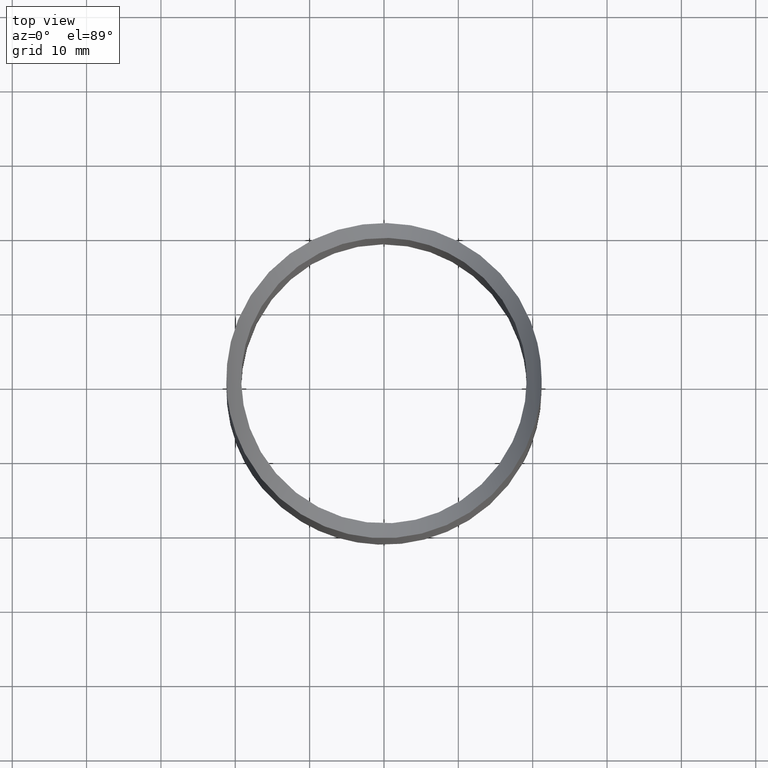
[diagram: clean part render]
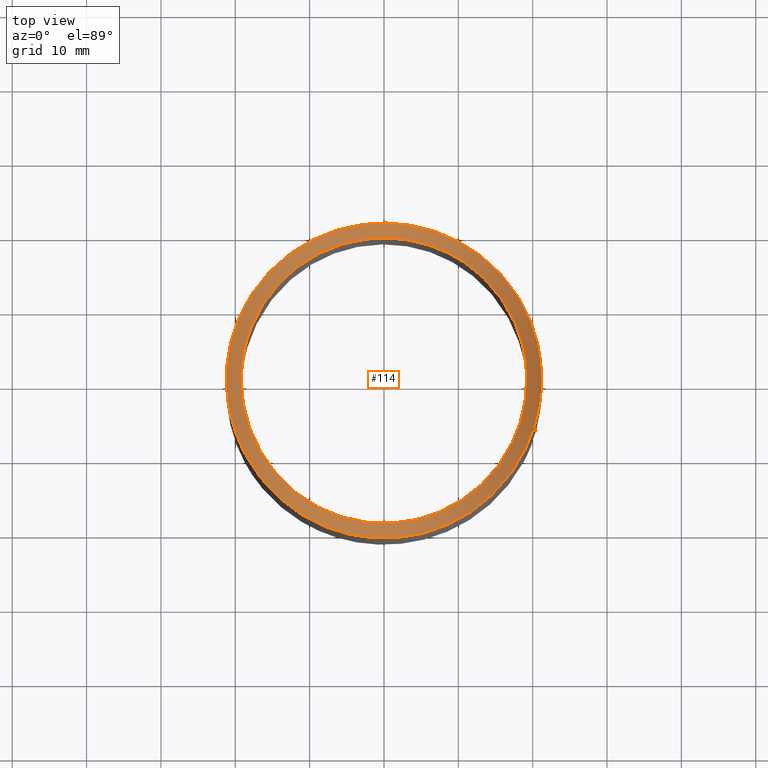
[diagram: same view with one face highlighted and labeled with its STEP entity id]
A machine part, top view. The second image highlights one B-rep face of the part: STEP entity #114.
In plain terms, the highlighted cylindrical surface (partial cylindrical patch) has radius 24.15 mm, axis along (-0, 1, -0).
Its self-contained STEP definition (entity closure, byte-faithful):
#34 = FACE_OUTER_BOUND ( 'NONE', #9448, .T. ) ;
#66 = CARTESIAN_POINT ( 'NONE',  ( -19.94419146322031366, 7.219722584351021766, 34.05163442060293022 ) ) ;
#114 = ADVANCED_FACE ( 'NONE', ( #11532, #34 ), #7959, .F. ) ;
#154 = CARTESIAN_POINT ( 'NONE',  ( -20.62931908667948733, -4.937671174590838596, 35.11586201277336272 ) ) ;
#203 = CARTESIAN_POINT ( 'NONE',  ( -10.00391576498439150, -18.69453692488314545, 25.69179903627292560 ) ) ;
#246 = CARTESIAN_POINT ( 'NONE',  ( -16.19715647493500654, -13.69350632152724323, 29.75343096745083216 ) ) ;
#296 = CARTESIAN_POINT ( 'NONE',  ( 0.5992993401474236981, -21.20478202979933968, 23.52080213603889192 ) ) ;
#366 = CARTESIAN_POINT ( 'NONE',  ( 18.65490721349695491, -4.553721170974482035, 32.33769436334911518 ) ) ;
#390 = CARTESIAN_POINT ( 'NONE',  ( 14.26758304632108576, -15.73462341832112799, 28.15500989669029863 ) ) ;
#499 = CARTESIAN_POINT ( 'NONE',  ( 12.84787325281731007, -14.28080746366602760, 27.21901617949156815 ) ) ;
#549 = CARTESIAN_POINT ( 'NONE',  ( 16.27824432263802734, -10.19867580380511107, 29.83022275899706699 ) ) ;
#597 = CARTESIAN_POINT ( 'NONE',  ( 1.363781126241001118, -19.16317454119205976, 23.55430538705656573 ) ) ;
#638 = CARTESIAN_POINT ( 'NONE',  ( -3.255958080950192457, -18.92481743305896558, 23.74321653817355937 ) ) ;
#685 = CARTESIAN_POINT ( 'NONE',  ( 5.189299040029762722, 18.53272038759255835, 24.05261592422202099 ) ) ;
#734 = CARTESIAN_POINT ( 'NONE',  ( 8.756019969652241386, 17.09866197453808923, 25.16040561859561109 ) ) ;
#778 = CARTESIAN_POINT ( 'NONE',  ( 17.90542043135987527, 6.957763823597780117, 31.46568052536743210 ) ) ;
#809 = CARTESIAN_POINT ( 'NONE',  ( 21.19999999999999929, 0.7607316018210191766, 36.10856148159687251 ) ) ;
#818 = CARTESIAN_POINT ( 'NONE',  ( 11.87555162268128228, 15.09910562634390452, 26.63957769094678341 ) ) ;
#856 = CARTESIAN_POINT ( 'NONE',  ( 16.16775112329284880, 13.77464031684857204, 29.69759144699613884 ) ) ;
#866 = CARTESIAN_POINT ( 'NONE',  ( 19.20000000000000639, 0.6733561967134887860, 33.02636525132805190 ) ) ;
#900 = CARTESIAN_POINT ( 'NONE',  ( 18.35738798289526841, 10.62389000726081534, 31.97583591808911407 ) ) ;
#936 = DIRECTION ( 'NONE',  ( -0.000000000000000000, 1.000000000000000000, -0.000000000000000000 ) ) ;
#946 = CARTESIAN_POINT ( 'NONE',  ( 3.828703173773335244, 20.86444194102675098, 23.81915204452525003 ) ) ;
#1001 = CARTESIAN_POINT ( 'NONE',  ( 0.8570938160425978225, 21.19576360719492669, 23.52871889231639813 ) ) ;
#1092 = CARTESIAN_POINT ( 'NONE',  ( -20.36288625874305680, 5.937005181913807661, 34.68578424057155729 ) ) ;
#1189 = CARTESIAN_POINT ( 'NONE',  ( -21.17139254519067393, -1.327900722634554942, 36.05532838118423911 ) ) ;
#1236 = CARTESIAN_POINT ( 'NONE',  ( -20.45541735194242960, -5.611173856344445987, 34.83223599468176701 ) ) ;
#1284 = CARTESIAN_POINT ( 'NONE',  ( -14.40607568455914844, -15.60842448588201137, 28.25692576045749504 ) ) ;
#1334 = CARTESIAN_POINT ( 'NONE',  ( 5.052017920772571280, -20.60256207620233226, 24.04784085383190373 ) ) ;
#1424 = CARTESIAN_POINT ( 'NONE',  ( 20.39193468106632068, -5.807951388633579626, 34.73588361584385353 ) ) ;
#1473 = CARTESIAN_POINT ( 'NONE',  ( 9.776366241319037087, -18.82411369512748323, 25.58208157620547141 ) ) ;
#1546 = CARTESIAN_POINT ( 'NONE',  ( -16.57788926204874258, -9.704533056861709639, 30.10916673208805605 ) ) ;
#1594 = CARTESIAN_POINT ( 'NONE',  ( -18.15465230008538455, 6.368417433403505079, 31.73365288073044965 ) ) ;
#1616 = CARTESIAN_POINT ( 'NONE',  ( 21.19999999999999218, -4.607859233063393845E-16, 36.10856148159686541 ) ) ;
#1642 = CARTESIAN_POINT ( 'NONE',  ( -10.37863266359358327, -16.16477823992030594, 25.86154633321826068 ) ) ;
#1691 = CARTESIAN_POINT ( 'NONE',  ( -19.15521536426648908, -1.352689336175174173, 32.96782226099617930 ) ) ;
#1743 = CARTESIAN_POINT ( 'NONE',  ( -8.760153950930892108, -17.09650181637034194, 25.16204350349035224 ) ) ;
#1784 = CARTESIAN_POINT ( 'NONE',  ( -8.870002749926458208, 17.07581724350661645, 25.17924112084229904 ) ) ;
#1824 = CARTESIAN_POINT ( 'NONE',  ( 18.12073782222541851, 6.377740150159297627, 31.70797652130449862 ) ) ;
#1862 = CARTESIAN_POINT ( 'NONE',  ( -0.3881891571719875977, 19.19894101236592121, 23.52584192676885166 ) ) ;
#1943 = CARTESIAN_POINT ( 'NONE',  ( -13.19870381461336883, 16.60337798851294266, 27.44154372066829595 ) ) ;
#1987 = CARTESIAN_POINT ( 'NONE',  ( 12.79854085659568064, 16.91417942586904033, 27.18536005029367431 ) ) ;
#2030 = CARTESIAN_POINT ( 'NONE',  ( -3.977638343958842526, 20.82676644983991565, 23.85199950302858340 ) ) ;
#2081 = CARTESIAN_POINT ( 'NONE',  ( -14.68694656133646426, 15.30210980942055343, 28.49542990981161239 ) ) ;
#2177 = CARTESIAN_POINT ( 'NONE',  ( -21.19613358253338475, 0.5540781783344892464, 36.10147572910654645 ) ) ;
#2204 = DIRECTION ( 'NONE',  ( 0.000000000000000000, 0.000000000000000000, 1.000000000000000000 ) ) ;
#2313 = CARTESIAN_POINT ( 'NONE',  ( -20.05044987211627117, -6.920175649073054380, 34.20874045013990639 ) ) ;
#2360 = CARTESIAN_POINT ( 'NONE',  ( -0.8999169650053071567, -21.19415226156729659, 23.53013339016800742 ) ) ;
#2368 = VERTEX_POINT ( 'NONE', #4819 ) ;
#2459 = CARTESIAN_POINT ( 'NONE',  ( 5.762301184145837141, -20.41495202547942256, 24.21140025201506774 ) ) ;
#2525 = CARTESIAN_POINT ( 'NONE',  ( 18.12302669211720740, -6.370881589193591488, 31.71060711726216752 ) ) ;
#2614 = CARTESIAN_POINT ( 'NONE',  ( -18.49362913039032463, -5.198163359133895156, 32.14139585758521633 ) ) ;
#2668 = CARTESIAN_POINT ( 'NONE',  ( -17.16841745299954169, 8.616805603504120725, 30.68590196336463904 ) ) ;
#2716 = CARTESIAN_POINT ( 'NONE',  ( -18.11397489362586910, -6.396806568418024419, 31.70029844977505107 ) ) ;
#2768 = CARTESIAN_POINT ( 'NONE',  ( -19.16624718914797398, 1.314398449266445779, 32.98181745028027478 ) ) ;
#2812 = CARTESIAN_POINT ( 'NONE',  ( 7.090031377504283583, -17.85434781506717883, 24.58098190192093213 ) ) ;
#2901 = CARTESIAN_POINT ( 'NONE',  ( -1.720803456266110976, 19.12565675985445424, 23.58407282594136944 ) ) ;
#2921 = CARTESIAN_POINT ( 'NONE',  ( -6.617685140892510666E-15, -21.19999999999999929, 47.67499999999999716 ) ) ;
#2939 = CARTESIAN_POINT ( 'NONE',  ( 18.49976728379239788, 5.176419524179714848, 32.14871298614610851 ) ) ;
#2974 = CARTESIAN_POINT ( 'NONE',  ( 10.37756682919519768, 16.16549921756677222, 25.86101600772280662 ) ) ;
#3008 = CARTESIAN_POINT ( 'NONE',  ( 16.96650338785486056, 12.77562585898296632, 30.45766644754966279 ) ) ;
#3051 = CARTESIAN_POINT ( 'NONE',  ( 5.989666282539716669, 20.38969150912193129, 24.23362212893257350 ) ) ;
#3097 = CARTESIAN_POINT ( 'NONE',  ( -5.059804035448618009, 20.60052458868202407, 24.04961701857542522 ) ) ;
#3147 = CARTESIAN_POINT ( 'NONE',  ( -1.379351382647282076, 21.16843550293391729, 23.55273133158973309 ) ) ;
#3248 = CARTESIAN_POINT ( 'NONE',  ( -20.90685473131000549, -3.532539769826033460, 35.58623692906678571 ) ) ;
#3299 = CARTESIAN_POINT ( 'NONE',  ( -18.30954737960178136, 10.76482312935650754, 31.89212507464895552 ) ) ;
#3344 = CARTESIAN_POINT ( 'NONE',  ( -18.92877723315591965, 9.635848647165394354, 32.65189449167129965 ) ) ;
#3434 = CARTESIAN_POINT ( 'NONE',  ( 16.88200995086582523, -12.83973443144087234, 30.39691521375912231 ) ) ;
#3577 = CARTESIAN_POINT ( 'NONE',  ( -6.057539750127693523, -20.37040628734392200, 24.25041600823640664 ) ) ;
#3627 = CARTESIAN_POINT ( 'NONE',  ( 16.06516379777915304, -13.84816061437716961, 29.63490615289967778 ) ) ;
#3691 = CARTESIAN_POINT ( 'NONE',  ( -18.92239781040531454, 3.269621082421543257, 32.66926862029863088 ) ) ;
#3741 = CARTESIAN_POINT ( 'NONE',  ( -16.59363267783394491, 9.677564321778540091, 30.12406371466215660 ) ) ;
#3758 = CARTESIAN_POINT ( 'NONE',  ( 20.65678568497506973, -4.781809977681571233, 35.16336350674345823 ) ) ;
#3783 = CARTESIAN_POINT ( 'NONE',  ( -18.92355857670020924, -3.310002899722413350, 32.66946757091844233 ) ) ;
#3832 = CARTESIAN_POINT ( 'NONE',  ( -6.428818667088295413, -18.13677263030219322, 24.36361817969178034 ) ) ;
#3880 = CARTESIAN_POINT ( 'NONE',  ( -5.199718337577956540, -18.52959265748502915, 24.05507122663374631 ) ) ;
#3926 = CARTESIAN_POINT ( 'NONE',  ( 1.267964607989642944, 19.16952229803325380, 23.54925750774568627 ) ) ;
#3967 = CARTESIAN_POINT ( 'NONE',  ( -4.651210577919488109, 18.63960173529629216, 23.96824617549106051 ) ) ;
#4011 = CARTESIAN_POINT ( 'NONE',  ( -5.279293763810099627, 18.47129433215803118, 24.10052795191651853 ) ) ;
#4097 = CARTESIAN_POINT ( 'NONE',  ( -14.20856944367890051, 15.74784103867826701, 28.13746971191927670 ) ) ;
#4148 = CARTESIAN_POINT ( 'NONE',  ( -2.501427200603757228, 21.05526489811397184, 23.65196207914110005 ) ) ;
#4220 = EDGE_CURVE ( 'NONE', #2368, #2368, #8311, .T. ) ;
#4246 = CARTESIAN_POINT ( 'NONE',  ( -16.86133393032116956, 12.91574079727568325, 30.35350802484506971 ) ) ;
#4390 = CARTESIAN_POINT ( 'NONE',  ( -20.54646411576973009, 5.272054584498080843, 34.98031200607299951 ) ) ;
#4484 = CARTESIAN_POINT ( 'NONE',  ( -19.04726911328291195, -9.403061671351816031, 32.80248823128799529 ) ) ;
#4536 = CARTESIAN_POINT ( 'NONE',  ( -9.377422683829413685, -19.01651874759216554, 25.41734066544023918 ) ) ;
#4590 = CARTESIAN_POINT ( 'NONE',  ( 17.26894050692186866, -12.31449342644357792, 30.78460162156350677 ) ) ;
#4639 = CARTESIAN_POINT ( 'NONE',  ( -1.646797548463653893, -21.14920743253038182, 23.56961009978418531 ) ) ;
#4712 = CARTESIAN_POINT ( 'NONE',  ( 17.90880337583957527, -6.948946749652339605, 31.46944091350058770 ) ) ;
#4732 = CARTESIAN_POINT ( 'NONE',  ( -4.244829350413268365, -20.77400722764772212, 23.89811363479034156 ) ) ;
#4759 = CARTESIAN_POINT ( 'NONE',  ( 16.58992556518729344, -9.684061551870806639, 30.12052106036364307 ) ) ;
#4800 = CARTESIAN_POINT ( 'NONE',  ( -18.65832575219401690, -4.574283389448905446, 32.34092184671553838 ) ) ;
#4819 = CARTESIAN_POINT ( 'NONE',  ( 21.19999999999999929, 0.000000000000000000, 36.10856148159686541 ) ) ;
#4845 = CARTESIAN_POINT ( 'NONE',  ( -18.86353432675474551, 3.593370252826222799, 32.59519061868555667 ) ) ;
#4892 = CARTESIAN_POINT ( 'NONE',  ( -2.600458692949032535, -19.02597152541186887, 23.66314590093217163 ) ) ;
#4947 = CARTESIAN_POINT ( 'NONE',  ( -13.25109797467948702, -13.90706630659890841, 27.47869606916848895 ) ) ;
#4964 = CARTESIAN_POINT ( 'NONE',  ( 21.18705007545193908, -0.7651361944628163325, 36.08485221934159881 ) ) ;
#4989 = CARTESIAN_POINT ( 'NONE',  ( 14.53893462062065289, -12.59675815367749863, 28.36519711228946150 ) ) ;
#5033 = CARTESIAN_POINT ( 'NONE',  ( 18.92773479330213249, 3.286046076691205187, 32.67475218828459305 ) ) ;
#5073 = CARTESIAN_POINT ( 'NONE',  ( 9.851559161090090555, 16.49178307897619788, 25.61776472529576409 ) ) ;
#5121 = CARTESIAN_POINT ( 'NONE',  ( 17.16178219776020697, 8.630124720086259416, 30.67916329267233522 ) ) ;
#5165 = CARTESIAN_POINT ( 'NONE',  ( -6.512315818788216859, 18.07344459770130740, 24.41094150482693337 ) ) ;
#5292 = CARTESIAN_POINT ( 'NONE',  ( 11.70097173117911105, 17.69122308532080012, 26.53936057573138640 ) ) ;
#5383 = CARTESIAN_POINT ( 'NONE',  ( -21.06282559943587884, -2.436221136448912805, 35.86037302850127162 ) ) ;
#5485 = CARTESIAN_POINT ( 'NONE',  ( -21.20554532945919490, -0.5806661566480650905, 36.11872383202573644 ) ) ;
#5631 = ORIENTED_EDGE ( 'NONE', *, *, #4220, .T. ) ;
#5632 = CARTESIAN_POINT ( 'NONE',  ( -3.875882088453088237, -20.84607472227184033, 23.83510850980708895 ) ) ;
#5722 = CARTESIAN_POINT ( 'NONE',  ( 19.74765873688392759, -7.739758821920953658, 33.76654086413228129 ) ) ;
#5768 = CARTESIAN_POINT ( 'NONE',  ( -18.43835679299219521, -10.54151119859169228, 32.04397155093638361 ) ) ;
#5792 = CARTESIAN_POINT ( 'NONE',  ( 17.16719019093400078, -8.619411775009753640, 30.68462207457139712 ) ) ;
#5812 = CARTESIAN_POINT ( 'NONE',  ( -13.41327811795210145, -16.47184304281851652, 27.55248098906725573 ) ) ;
#5885 = CARTESIAN_POINT ( 'NONE',  ( 2.693690987033223738, -19.02186074817231187, 23.66642160731824163 ) ) ;
#5937 = CARTESIAN_POINT ( 'NONE',  ( -14.54935027884808818, 12.58548174062808300, 28.37269901469159450 ) ) ;
#5983 = CARTESIAN_POINT ( 'NONE',  ( 4.624399148999456699, -18.64624036565931675, 23.96302375864944878 ) ) ;
#6031 = CARTESIAN_POINT ( 'NONE',  ( -8.188589004868941146, -17.37800528926538490, 24.94723189431120147 ) ) ;
#6081 = CARTESIAN_POINT ( 'NONE',  ( -15.26203645178455837, -11.71076320460980469, 28.93780303271718779 ) ) ;
#6171 = CARTESIAN_POINT ( 'NONE',  ( 13.25440064150452457, 13.90396366826683128, 27.48084296648186964 ) ) ;
#6250 = CARTESIAN_POINT ( 'NONE',  ( -12.66552224037674534, 17.01437272971190851, 27.10256723657073863 ) ) ;
#6262 = CARTESIAN_POINT ( 'NONE',  ( -9.944317383198658433, 16.46895857811897912, 25.63895854173953737 ) ) ;
#6298 = CARTESIAN_POINT ( 'NONE',  ( 21.04311487925438939, 2.600411042969252851, 35.82526941153323463 ) ) ;
#6307 = CARTESIAN_POINT ( 'NONE',  ( 19.02837230249241784, 2.644166875896656776, 32.80368836104756980 ) ) ;
#6336 = CARTESIAN_POINT ( 'NONE',  ( 11.12876944867947593, 18.05727372709984380, 26.23171522967705016 ) ) ;
#6380 = CARTESIAN_POINT ( 'NONE',  ( -10.98734972168231572, 18.18173473906202986, 26.13033894899644594 ) ) ;
#6750 = CARTESIAN_POINT ( 'NONE',  ( -7.428390811851950382, -19.90728424505650196, 24.65346359776447116 ) ) ;
#6805 = CARTESIAN_POINT ( 'NONE',  ( 19.98206215831099541, -7.115016007147695554, 34.10725467785898957 ) ) ;
#6848 = CARTESIAN_POINT ( 'NONE',  ( 11.57557648746820966, -17.77401718948302189, 26.47002558068056288 ) ) ;
#6894 = CARTESIAN_POINT ( 'NONE',  ( 19.20000000000000284, 0.000000000000000000, 33.02636525132803769 ) ) ;
#6899 = CARTESIAN_POINT ( 'NONE',  ( 20.57309299853876539, -5.129438940379512424, 35.02590606750470670 ) ) ;
#6975 = CARTESIAN_POINT ( 'NONE',  ( -19.20046507156175863, 0.6538068143722347569, 33.02697482130455597 ) ) ;
#6995 = B_SPLINE_CURVE_WITH_KNOTS ( 'NONE', 3,
 ( #12163, #13270, #8953, #11146, #366, #7908, #9002, #2525, #4712, #12260, #5792, #4759, #549, #11417, #4989, #13452, #499, #7066, #12439, #7154, #8089, #2812, #12487, #7998, #5983, #12348, #5885, #597, #13495, #9188, #11377, #7113, #4892, #638, #9279, #3880, #3832, #6031, #1743, #13543, #1642, #11280, #13590, #12536, #4947, #8180, #6081, #8137, #1546, #13635, #9095, #11470, #2716, #2614, #4800, #3783, #10291, #10195, #1691, #9231, #10240, #6975, #2768, #10335, #10384, #3691, #4845, #8041, #1594, #9141, #2668, #3741, #11324, #12393, #5937, #7020, #9508, #9460, #9371, #6262, #1784, #13771, #5165, #4011, #3967, #11684, #7196, #2901, #12713, #7280, #1862, #13820, #3926, #10472, #12758, #10430, #11557, #685, #9416, #10604, #734, #5073, #2974, #12620, #818, #8312, #6171, #7239, #13726, #8266, #13866, #5121, #11513, #778, #1824, #2939, #12661, #5033, #6307, #7321, #866, #12582 ),
 .UNSPECIFIED., .T., .F.,
 ( 4, 2, 2, 2, 2, 2, 2, 2, 2, 2, 2, 2, 2, 2, 2, 2, 2, 2, 2, 2, 2, 2, 2, 2, 2, 2, 2, 2, 2, 2, 2, 2, 2, 2, 2, 2, 2, 2, 2, 2, 2, 2, 2, 2, 2, 2, 2, 2, 2, 2, 2, 2, 2, 2, 2, 2, 2, 2, 2, 2, 4 ),
 ( 0.000000000000000000, 0.003974698482295061126, 0.004968373102868824456, 0.005962047723442589521, 0.007949396964590118783, 0.009936746205737645443, 0.01192409544688517557, 0.01589879392918023757, 0.01788614317032775902, 0.01987349241147528048, 0.02384819089377033727, 0.02583554013491786219, 0.02782288937606538712, 0.02981023861721291898, 0.03179758785836044044, 0.03378493709950797230, 0.03477861172008173823, 0.03577228634065550417, 0.03974698482295055402, 0.04173433406409808588, 0.04372168330524560387, 0.04570903254639312879, 0.04769638178754065372, 0.05167108026983569663, 0.05365842951098322156, 0.05564577875213073954, 0.05763312799327827141, 0.05962047723442579633, 0.06160782647557331432, 0.06260150109614708025, 0.06359517571672082537, 0.06558252495786834335, 0.06657619957844211622, 0.06756987419901587522, 0.07154457268131089731, 0.07353192192245840142, 0.07551927116360591941, 0.07949396964590094150, 0.08148131888704845949, 0.08346866812819596360, 0.08744336661049095794, 0.08943071585163846204, 0.09141806509278596615, 0.09340541433393345638, 0.09439908895450720150, 0.09539276357508096049, 0.09738011281622846460, 0.09837378743680222359, 0.09936746205737596871, 0.1033421605396709630, 0.1053295097808184672, 0.1073168590219659713, 0.1093042082631134754, 0.1112915575042609795, 0.1152662559865559738, 0.1172536052277034779, 0.1192409544688509820, 0.1212283037099984861, 0.1232156529511459764, 0.1252030021922934944, 0.1271903514334409846 ),
 .UNSPECIFIED. ) ;
#6996 = CARTESIAN_POINT ( 'NONE',  ( 21.14836757930289579, -1.527087688503413920, 36.01434459721696157 ) ) ;
#7020 = CARTESIAN_POINT ( 'NONE',  ( -13.29008748311627386, 13.86986159758601289, 27.50432688512528401 ) ) ;
#7040 = CARTESIAN_POINT ( 'NONE',  ( 21.19740071756693567, -0.3830497548331253110, 36.10379352461025348 ) ) ;
#7066 = CARTESIAN_POINT ( 'NONE',  ( 11.91904472403095028, -15.06471645273509630, 26.66425289162919299 ) ) ;
#7113 = CARTESIAN_POINT ( 'NONE',  ( -2.272163508927349973, -19.06794498319459308, 23.62986304047646513 ) ) ;
#7154 = CARTESIAN_POINT ( 'NONE',  ( 9.923446632427618042, -16.48222013032255973, 25.62910671423834685 ) ) ;
#7196 = CARTESIAN_POINT ( 'NONE',  ( -2.718640566721752805, 19.01832373245418850, 23.66922486082669153 ) ) ;
#7239 = CARTESIAN_POINT ( 'NONE',  ( 14.51671477888240069, 12.62308837981320586, 28.34807705121689381 ) ) ;
#7280 = CARTESIAN_POINT ( 'NONE',  ( -0.7204800247264573354, 19.18937357302040780, 23.53345003320502826 ) ) ;
#7321 = CARTESIAN_POINT ( 'NONE',  ( 19.16449714391507797, 1.338887661725577383, 32.97952751470801047 ) ) ;
#7360 = CARTESIAN_POINT ( 'NONE',  ( 20.00715471155248082, 7.043729142430191104, 34.14443515223382519 ) ) ;
#7402 = CARTESIAN_POINT ( 'NONE',  ( 7.355998353420206470, 19.93388680068092000, 24.63040782151362507 ) ) ;
#7550 = CARTESIAN_POINT ( 'NONE',  ( -20.97635834696324153, 3.158545356204265797, 35.70651495239139450 ) ) ;
#7742 = CARTESIAN_POINT ( 'NONE',  ( -17.38037110746650171, -12.15634875530774117, 30.89956891561283925 ) ) ;
#7794 = CARTESIAN_POINT ( 'NONE',  ( -3.134448869397681303, -20.97037251875283204, 23.72634411886764383 ) ) ;
#7882 = CARTESIAN_POINT ( 'NONE',  ( 20.29439568384520243, -6.139549580194636036, 34.58317013806716744 ) ) ;
#7908 = CARTESIAN_POINT ( 'NONE',  ( 18.49318556519854440, -5.171462781292560429, 32.14307819401102506 ) ) ;
#7959 = CYLINDRICAL_SURFACE ( 'NONE', #8920, 24.15000000000000568 ) ;
#7998 = CARTESIAN_POINT ( 'NONE',  ( 5.251616885425028691, -18.47913348551918844, 24.09438045810048479 ) ) ;
#8015 = CARTESIAN_POINT ( 'NONE',  ( 20.99808804751277691, -3.012252433823535469, 35.74480758918370782 ) ) ;
#8041 = CARTESIAN_POINT ( 'NONE',  ( -18.53313602878473887, 5.181376464548137939, 32.18556420286723352 ) ) ;
#8064 = CARTESIAN_POINT ( 'NONE',  ( 20.88157022807384777, -3.730151578770624088, 35.53960156782886770 ) ) ;
#8089 = CARTESIAN_POINT ( 'NONE',  ( 8.842843658691551312, -17.09003333435879668, 25.16843465960357662 ) ) ;
#8137 = CARTESIAN_POINT ( 'NONE',  ( -16.26396012753205866, -10.22162090094121289, 29.81712911118360410 ) ) ;
#8180 = CARTESIAN_POINT ( 'NONE',  ( -14.51158351227131327, -12.62878882273153813, 28.34430927331682426 ) ) ;
#8266 = CARTESIAN_POINT ( 'NONE',  ( 16.27043166596847001, 10.21136784205022074, 29.82301529211052227 ) ) ;
#8311 = B_SPLINE_CURVE_WITH_KNOTS ( 'NONE', 3,
 ( #8529, #809, #10744, #6298, #8478, #13858, #12896, #9500, #13812, #7360, #10550, #9587, #13956, #900, #8433, #3008, #856, #14005, #12798, #11633, #1987, #5292, #6336, #9543, #13907, #7402, #3051, #946, #12705, #10644, #1001, #8347, #3147, #4148, #10592, #11716, #2030, #3097, #9449, #10695, #11761, #12841, #6380, #6250, #1943, #4097, #2081, #9635, #4246, #3299, #3344, #9831, #66, #1092, #4390, #12047, #7550, #8578, #10791, #11900, #2177, #5485, #1189, #5383, #10937, #3248, #11988, #154, #1236, #2313, #9877, #4484, #5768, #7742, #12090, #246, #8833, #1284, #5812, #11212, #8978, #12140, #203, #4536, #13337, #6750, #3577, #4732, #5632, #7794, #13291, #4639, #2360, #296, #10072, #11166, #13244, #1334, #2459, #12278, #8882, #11077, #1473, #9929, #6848, #11121, #390, #9019, #3627, #3434, #4590, #10024, #12182, #5722, #6805, #7882, #1424, #6899, #3758, #8064, #8015, #9255, #6996, #13473, #4964, #7040, #9165, #1616 ),
 .UNSPECIFIED., .T., .F.,
 ( 4, 2, 2, 2, 2, 2, 2, 2, 2, 2, 2, 2, 2, 2, 2, 2, 2, 2, 2, 2, 2, 2, 2, 2, 2, 2, 2, 2, 2, 2, 2, 2, 2, 2, 2, 2, 2, 2, 2, 2, 2, 2, 2, 2, 2, 2, 2, 2, 2, 2, 2, 2, 2, 2, 2, 2, 2, 2, 2, 2, 2, 2, 2, 4 ),
 ( 0.000000000000000000, 0.002241287828992608294, 0.003361931743488913524, 0.004482575657985219189, 0.006723863486977819243, 0.008965151315970419296, 0.01120643914496302282, 0.01344772697395562461, 0.01793030263194083859, 0.02017159046093345079, 0.02241287828992605605, 0.02465416611891866824, 0.02689545394791127350, 0.03137802960589648749, 0.03361931743488909968, 0.03586060526388170494, 0.03810189309287431714, 0.03922253700737061977, 0.04034318092186692239, 0.04258446875085952765, 0.04482575657985213985, 0.04930833223783735730, 0.05154962006682996256, 0.05379090789582257476, 0.05827348355380779221, 0.06275605921179300273, 0.06499734704078562186, 0.06723863486977822712, 0.06947992269877083238, 0.07060056661326713501, 0.07172121052776343764, 0.07396249835675604289, 0.07508314227125235940, 0.07620378618574866203, 0.07844507401474126729, 0.08068636184373388642, 0.08516893750171908306, 0.08741022533071170220, 0.08965151315970430745, 0.09413408881768953185, 0.09637537664668213711, 0.09749602056117843973, 0.09861666447567474236, 0.1030992401336599668, 0.1042198840481562694, 0.1053405279626525859, 0.1075818157916452050, 0.1098231036206378380, 0.1120643914496304572, 0.1143056792786230902, 0.1165469671076156954, 0.1187882549366083285, 0.1210295427656009476, 0.1255121184235861720, 0.1277534062525788050, 0.1299946940815714103, 0.1344772697395566208, 0.1367185575685492260, 0.1378392014830455148, 0.1389598453975418313, 0.1412011332265344643, 0.1423217771410307531, 0.1428820990982789252, 0.1434424210555270696 ),
 .UNSPECIFIED. ) ;
#8312 = CARTESIAN_POINT ( 'NONE',  ( 12.80958895537921727, 14.31524180210326769, 27.19495730333043326 ) ) ;
#8347 = CARTESIAN_POINT ( 'NONE',  ( -0.6328581008026452626, 21.20364344460252681, 23.52180162452549439 ) ) ;
#8433 = CARTESIAN_POINT ( 'NONE',  ( 18.02703324573773003, 11.17478347359660340, 31.59651591960012951 ) ) ;
#8478 = CARTESIAN_POINT ( 'NONE',  ( 20.99518966925268515, 2.962050479155549088, 35.74028062210823720 ) ) ;
#8529 = CARTESIAN_POINT ( 'NONE',  ( 21.19999999999999218, -4.607859233063393845E-16, 36.10856148159686541 ) ) ;
#8578 = CARTESIAN_POINT ( 'NONE',  ( -21.10295424153486010, 2.059448189816778019, 35.93211882720227379 ) ) ;
#8833 = CARTESIAN_POINT ( 'NONE',  ( -15.76577616875667331, -14.18836793598355150, 29.37182178562772350 ) ) ;
#8882 = CARTESIAN_POINT ( 'NONE',  ( 7.838284737744086961, -19.71068788427851715, 24.82172239114206747 ) ) ;
#8920 = AXIS2_PLACEMENT_3D ( 'NONE', #2921, #936, #2204 ) ;
#8953 = CARTESIAN_POINT ( 'NONE',  ( 19.06031456348138065, -2.650868228963059625, 32.83906826229878106 ) ) ;
#8978 = CARTESIAN_POINT ( 'NONE',  ( -11.20650900769452107, -18.00919104853146635, 26.27220752538120507 ) ) ;
#9002 = CARTESIAN_POINT ( 'NONE',  ( 18.40551820009557815, -5.474938991681091771, 32.03913549127035765 ) ) ;
#9019 = CARTESIAN_POINT ( 'NONE',  ( 15.63389383173102409, -14.33342034139705312, 29.25906332649878294 ) ) ;
#9095 = CARTESIAN_POINT ( 'NONE',  ( -17.41887507145834846, -8.099130958098609057, 30.94392515703036040 ) ) ;
#9141 = CARTESIAN_POINT ( 'NONE',  ( -17.43518533469062248, 8.064201605289722963, 30.96091389355974144 ) ) ;
#9165 = CARTESIAN_POINT ( 'NONE',  ( 21.19999999999998863, -0.1901829004552553770, 36.10856148159685830 ) ) ;
#9188 = CARTESIAN_POINT ( 'NONE',  ( -0.6258165461448710332, -19.20121394546992732, 23.52403487629114309 ) ) ;
#9231 = CARTESIAN_POINT ( 'NONE',  ( -19.19072569547894958, -0.6841720342988064640, 33.01418829058345494 ) ) ;
#9255 = CARTESIAN_POINT ( 'NONE',  ( 21.11770560777527095, -1.902853503920007405, 35.95870011411939515 ) ) ;
#9279 = CARTESIAN_POINT ( 'NONE',  ( -3.584023900688859232, -18.86541020908226329, 23.79018268737740627 ) ) ;
#9371 = CARTESIAN_POINT ( 'NONE',  ( -11.44176462236664804, 15.43032836794976781, 26.40008425002933734 ) ) ;
#9416 = CARTESIAN_POINT ( 'NONE',  ( 6.420707830273395089, 18.13977028926569801, 24.36128793513057289 ) ) ;
#9448 = EDGE_LOOP ( 'NONE', ( #5631 ) ) ;
#9449 = CARTESIAN_POINT ( 'NONE',  ( -5.765700953092397718, 20.41380111013801013, 24.21239766642771585 ) ) ;
#9460 = CARTESIAN_POINT ( 'NONE',  ( -11.92169305300572013, 15.06247350175059374, 26.66583905213116878 ) ) ;
#9500 = CARTESIAN_POINT ( 'NONE',  ( 20.59421893871964926, 5.081957251331890468, 35.05820584653805838 ) ) ;
#9508 = CARTESIAN_POINT ( 'NONE',  ( -12.84493445951116897, 14.28329555711447085, 27.21725653415303015 ) ) ;
#9543 = CARTESIAN_POINT ( 'NONE',  ( 9.932899202193443244, 18.74172236845740258, 25.65225074787231208 ) ) ;
#9587 = CARTESIAN_POINT ( 'NONE',  ( 19.25834572351404717, 8.887863037567722557, 33.09655174949588741 ) ) ;
#9635 = CARTESIAN_POINT ( 'NONE',  ( -16.04934571228517726, 13.91195018205658585, 29.59185218863818179 ) ) ;
#9831 = CARTESIAN_POINT ( 'NONE',  ( -19.70897052989555576, 7.837316334376752458, 33.71178288087186559 ) ) ;
#9877 = CARTESIAN_POINT ( 'NONE',  ( -19.81796637703257957, -7.558585585020061615, 33.86693712264892753 ) ) ;
#9923 = ORIENTED_EDGE ( 'NONE', *, *, #10424, .T. ) ;
#9929 = CARTESIAN_POINT ( 'NONE',  ( 10.99019997192858078, -18.14221865893224361, 26.16012407793472860 ) ) ;
#10024 = CARTESIAN_POINT ( 'NONE',  ( 18.35259929000591583, -10.69178739157260338, 31.94216637868228759 ) ) ;
#10072 = CARTESIAN_POINT ( 'NONE',  ( 1.351634497376335009, -21.17047566304135486, 23.55094095006732502 ) ) ;
#10195 = CARTESIAN_POINT ( 'NONE',  ( -19.12888181309555691, -1.683601365353989854, 32.93350886289529456 ) ) ;
#10240 = CARTESIAN_POINT ( 'NONE',  ( -19.19976032632891005, -0.3471800544704843339, 33.02605111069342314 ) ) ;
#10291 = CARTESIAN_POINT ( 'NONE',  ( -19.02529710796760654, -2.666946167577785687, 32.79974230769715149 ) ) ;
#10335 = CARTESIAN_POINT ( 'NONE',  ( -19.06507694431927646, 2.295867974628483132, 32.85108765217786697 ) ) ;
#10384 = CARTESIAN_POINT ( 'NONE',  ( -19.02302625232753641, 2.621456297767527310, 32.79704364375792380 ) ) ;
#10424 = EDGE_CURVE ( 'NONE', #10829, #10829, #6995, .T. ) ;
#10430 = CARTESIAN_POINT ( 'NONE',  ( 3.241179921734118174, 18.92736103110750889, 23.74120489434449155 ) ) ;
#10472 = CARTESIAN_POINT ( 'NONE',  ( 2.256037318895532273, 19.06986826019591774, 23.62833771854875309 ) ) ;
#10550 = CARTESIAN_POINT ( 'NONE',  ( 19.77521756840307532, 7.669338922180766183, 33.80576052837285062 ) ) ;
#10592 = CARTESIAN_POINT ( 'NONE',  ( -2.875685406383693632, 21.00737035516542051, 23.69393772533690168 ) ) ;
#10604 = CARTESIAN_POINT ( 'NONE',  ( 8.183186969679880463, 17.38058226344925217, 24.94526197157994929 ) ) ;
#10644 = CARTESIAN_POINT ( 'NONE',  ( 1.600552284528298008, 21.15267129505331667, 23.56656937056847667 ) ) ;
#10695 = CARTESIAN_POINT ( 'NONE',  ( -7.148069708100685204, 19.97177214703030756, 24.59595939619725868 ) ) ;
#10744 = CARTESIAN_POINT ( 'NONE',  ( 21.15925873928337708, 1.505010053001364811, 36.03311591850231821 ) ) ;
#10791 = CARTESIAN_POINT ( 'NONE',  ( -21.13600295169353771, 1.688561807819377369, 35.99192591776143502 ) ) ;
#10829 = VERTEX_POINT ( 'NONE', #6894 ) ;
#10937 = CARTESIAN_POINT ( 'NONE',  ( -21.01685719160356669, -2.804839704732393635, 35.77850971382740397 ) ) ;
#11077 = CARTESIAN_POINT ( 'NONE',  ( 9.146863275391044823, -19.13856882639603896, 25.31329395330531185 ) ) ;
#11121 = CARTESIAN_POINT ( 'NONE',  ( 13.26122689838578772, -16.59694229147573097, 27.44996586617462953 ) ) ;
#11146 = CARTESIAN_POINT ( 'NONE',  ( 18.72920077870020350, -4.238184345067170788, 32.42866729988248409 ) ) ;
#11166 = CARTESIAN_POINT ( 'NONE',  ( 2.861955765926945894, -21.01963759934509568, 23.68320244223010818 ) ) ;
#11212 = CARTESIAN_POINT ( 'NONE',  ( -11.77674396363668485, -17.64079681843034564, 26.58156199386483465 ) ) ;
#11280 = CARTESIAN_POINT ( 'NONE',  ( -11.38903002107075402, -15.46952057081156262, 26.37164880780972354 ) ) ;
#11324 = CARTESIAN_POINT ( 'NONE',  ( -16.28481645854532900, 10.18808115102788925, 29.83625849341002834 ) ) ;
#11377 = CARTESIAN_POINT ( 'NONE',  ( -1.285653039379479168, -19.16830998904389460, 23.55022124626802338 ) ) ;
#11417 = CARTESIAN_POINT ( 'NONE',  ( 15.28384674677678667, -11.68164946124939974, 28.95587126346167395 ) ) ;
#11470 = CARTESIAN_POINT ( 'NONE',  ( -17.89847223302856705, -6.975515949018373796, 31.45800996239960767 ) ) ;
#11513 = CARTESIAN_POINT ( 'NONE',  ( 17.42595595449417800, 8.083972867393539374, 30.95129892259217996 ) ) ;
#11532 = FACE_BOUND ( 'NONE', #12036, .T. ) ;
#11557 = CARTESIAN_POINT ( 'NONE',  ( 3.569810752822805355, 18.86811756726812916, 23.78804412841744664 ) ) ;
#11633 = CARTESIAN_POINT ( 'NONE',  ( 13.32389046653464604, 16.50317929767390268, 27.52373680058484595 ) ) ;
#11684 = CARTESIAN_POINT ( 'NONE',  ( -3.370880634393749187, 18.91310858741312018, 23.75260253476486483 ) ) ;
#11716 = CARTESIAN_POINT ( 'NONE',  ( -3.613022005524566094, 20.89318663543610910, 23.79389897083148142 ) ) ;
#11761 = CARTESIAN_POINT ( 'NONE',  ( -7.827907481127830636, 19.71471125336513097, 24.81824697376244870 ) ) ;
#11900 = CARTESIAN_POINT ( 'NONE',  ( -21.18264441055352165, 0.9367163545436664185, 36.07670630820558699 ) ) ;
#11988 = CARTESIAN_POINT ( 'NONE',  ( -20.84335338306961916, -3.888697776966772324, 35.47677541651901834 ) ) ;
#12036 = EDGE_LOOP ( 'NONE', ( #9923 ) ) ;
#12047 = CARTESIAN_POINT ( 'NONE',  ( -20.85511948945990568, 3.875014617119539651, 35.49401966161518374 ) ) ;
#12090 = CARTESIAN_POINT ( 'NONE',  ( -17.00333266243378461, -12.67859107400535557, 30.51641052322288061 ) ) ;
#12140 = CARTESIAN_POINT ( 'NONE',  ( -10.30975277606171403, -18.52749846274447520, 25.83370390385972470 ) ) ;
#12163 = CARTESIAN_POINT ( 'NONE',  ( 19.20000000000000639, 4.336808689942017736E-16, 33.02636525132804479 ) ) ;
#12182 = CARTESIAN_POINT ( 'NONE',  ( 18.96977030825059174, -9.556326872388794413, 32.70364872690721114 ) ) ;
#12260 = CARTESIAN_POINT ( 'NONE',  ( 17.43089603261612908, -8.073225054717221738, 30.95646994617548131 ) ) ;
#12278 = CARTESIAN_POINT ( 'NONE',  ( 7.154830645487485263, -19.96954630365516792, 24.59788955469422689 ) ) ;
#12348 = CARTESIAN_POINT ( 'NONE',  ( 3.345432641899686033, -18.91759571673213003, 23.74905247021235155 ) ) ;
#12393 = CARTESIAN_POINT ( 'NONE',  ( -15.29429276720970421, 11.66762989062603495, 28.96455128115161415 ) ) ;
#12439 = CARTESIAN_POINT ( 'NONE',  ( 11.43302474737128627, -15.43698605618202357, 26.39527088789773401 ) ) ;
#12487 = CARTESIAN_POINT ( 'NONE',  ( 6.482609521754971738, -18.08407111452974902, 24.40268013971218508 ) ) ;
#12536 = CARTESIAN_POINT ( 'NONE',  ( -12.80720717478307336, -14.31733778815051572, 27.19348642564542118 ) ) ;
#12582 = CARTESIAN_POINT ( 'NONE',  ( 19.20000000000000639, 4.336808689942017736E-16, 33.02636525132804479 ) ) ;
#12620 = CARTESIAN_POINT ( 'NONE',  ( 11.38956874509836759, 15.46916229303458401, 26.37191302392031034 ) ) ;
#12661 = CARTESIAN_POINT ( 'NONE',  ( 18.66408245944931465, 4.550743804104310897, 32.34794533299600516 ) ) ;
#12705 = CARTESIAN_POINT ( 'NONE',  ( 3.084421250912813939, 20.98770154349920247, 23.71118267936977020 ) ) ;
#12713 = CARTESIAN_POINT ( 'NONE',  ( -1.386257875970285269, 19.15279192943614817, 23.56251743667611720 ) ) ;
#12758 = CARTESIAN_POINT ( 'NONE',  ( 2.584810328228714038, 19.02811074316159434, 23.66145067859324769 ) ) ;
#12798 = CARTESIAN_POINT ( 'NONE',  ( 14.33064357019541646, 15.63693189086025370, 28.22680932424991695 ) ) ;
#12841 = CARTESIAN_POINT ( 'NONE',  ( -9.783719388593977939, 18.86114355684420474, 25.55169751896621833 ) ) ;
#12896 = CARTESIAN_POINT ( 'NONE',  ( 20.81536095300337408, 4.035812705794619148, 35.42902268098336549 ) ) ;
#13244 = CARTESIAN_POINT ( 'NONE',  ( 3.602050574966665142, -20.90487217925428709, 23.78377219468315928 ) ) ;
#13270 = CARTESIAN_POINT ( 'NONE',  ( 19.20000000000000639, -1.346712393426995558, 33.02636525132802348 ) ) ;
#13291 = CARTESIAN_POINT ( 'NONE',  ( -2.763046046473152106, -21.02250712551967737, 23.68066957285884300 ) ) ;
#13337 = CARTESIAN_POINT ( 'NONE',  ( -9.055718434051112098, -19.17189410041114783, 25.28441458075507242 ) ) ;
#13452 = CARTESIAN_POINT ( 'NONE',  ( 13.28753157040789823, -13.87213893877378190, 27.50272554639307288 ) ) ;
#13473 = CARTESIAN_POINT ( 'NONE',  ( 21.17929872054909168, -0.9558596785980353339, 36.07067905352975146 ) ) ;
#13495 = CARTESIAN_POINT ( 'NONE',  ( 0.6982102987030214258, -19.19871781416464174, 23.52601937690091205 ) ) ;
#13543 = CARTESIAN_POINT ( 'NONE',  ( -9.853547704664940454, -16.49055090750630015, 25.61868332904066392 ) ) ;
#13590 = CARTESIAN_POINT ( 'NONE',  ( -11.87433134676854252, -15.10003218622290611, 26.63890699342114488 ) ) ;
#13635 = CARTESIAN_POINT ( 'NONE',  ( -17.15475403940846277, -8.644003012717659473, 30.67207893836377863 ) ) ;
#13726 = CARTESIAN_POINT ( 'NONE',  ( 15.26791739947551818, 11.70327379382453259, 28.94255710769493106 ) ) ;
#13771 = CARTESIAN_POINT ( 'NONE',  ( -7.120985005889013841, 17.84199241607392139, 24.59053603331603810 ) ) ;
#13812 = CARTESIAN_POINT ( 'NONE',  ( 20.41661273894699846, 5.749981230559304990, 34.77056862858850650 ) ) ;
#13820 = CARTESIAN_POINT ( 'NONE',  ( 0.6069152550273234636, 19.20186868889127396, 23.52351433671590542 ) ) ;
#13858 = CARTESIAN_POINT ( 'NONE',  ( 20.88149335484289537, 3.678990019096604946, 35.54245075639207840 ) ) ;
#13866 = CARTESIAN_POINT ( 'NONE',  ( 16.58456793229647630, 9.693189742630979211, 30.11546298775080999 ) ) ;
#13907 = CARTESIAN_POINT ( 'NONE',  ( 9.307140707012026226, 19.06107999430647126, 25.37959706639172097 ) ) ;
#13956 = CARTESIAN_POINT ( 'NONE',  ( 18.97254326586879714, 9.481736890763235337, 32.72508199186214739 ) ) ;
#14005 = CARTESIAN_POINT ( 'NONE',  ( 14.81171923180427719, 15.18147543748700556, 28.59161201293681742 ) ) ;